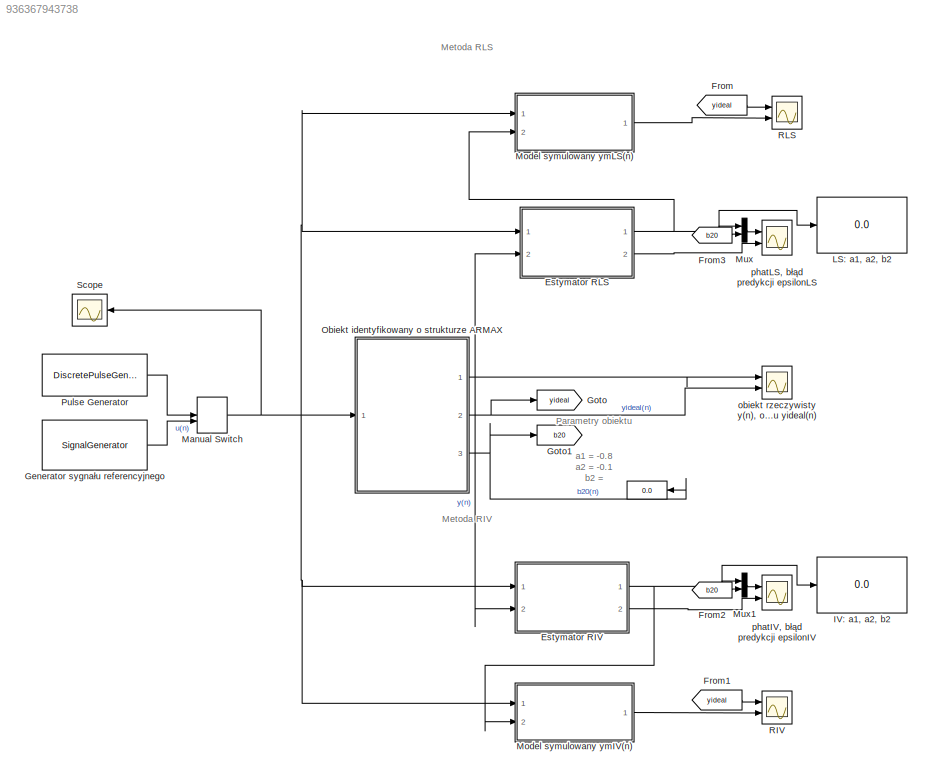
MODEL slx_936367943738
KIND model
CONFIG AbsTol = auto
CONFIG EnableMultiTasking = on
CONFIG FixedStep = Tp
CONFIG MaxStep = auto
CONFIG MinStep = auto
CONFIG RelTol = 1e-3
CONFIG SampleTimeConstraint = Unconstrained
CONFIG Solver = FixedStepDiscrete
CONFIG SolverName = FixedStepDiscrete
CONFIG StartTime = 0.0
CONFIG StopTime = Tend
BLOCK [Display]  
  Decimation = 1
  Ports = [1]
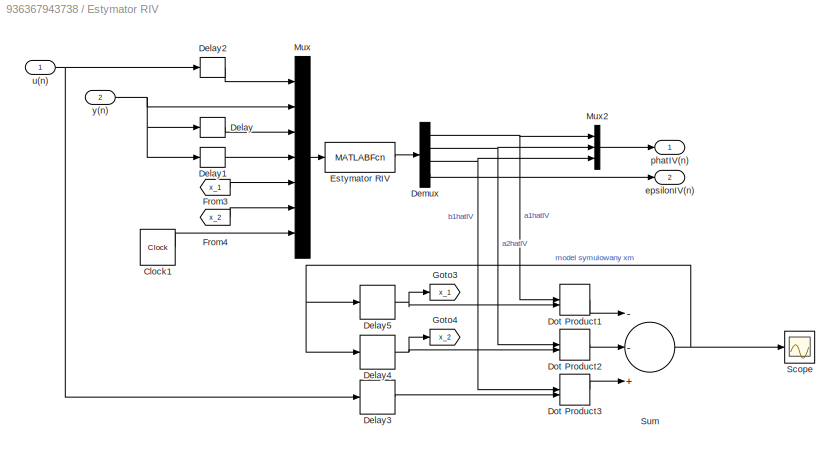
BLOCK [SubSystem] Estymator RIV
  Ports = [2, 2]
  RequestExecContextInheritance = off
BLOCK [Clock] Estymator RIV/Clock1
BLOCK [Delay] Estymator RIV/Delay
  DelayLength = 1
  InputPortMap = u0
  Ports = [1, 1]
BLOCK [Delay] Estymator RIV/Delay1
  InputPortMap = u0
  Ports = [1, 1]
BLOCK [Delay] Estymator RIV/Delay2
  InputPortMap = u0
  Ports = [1, 1]
BLOCK [Delay] Estymator RIV/Delay3
  InputPortMap = u0
  Ports = [1, 1]
BLOCK [Delay] Estymator RIV/Delay4
  InputPortMap = u0
  Ports = [1, 1]
BLOCK [Delay] Estymator RIV/Delay5
  DelayLength = 1
  InputPortMap = u0
  Ports = [1, 1]
BLOCK [Demux] Estymator RIV/Demux
  DisplayOption = bar
  Ports = [1, 4]
BLOCK [DotProduct] Estymator RIV/Dot Product1
  OutDataTypeStr = Inherit: Inherit via internal rule
BLOCK [DotProduct] Estymator RIV/Dot Product2
  OutDataTypeStr = Inherit: Inherit via internal rule
BLOCK [DotProduct] Estymator RIV/Dot Product3
  OutDataTypeStr = Inherit: Inherit via internal rule
BLOCK [MATLABFcn] Estymator RIV/Estymator RIV
  MATLABFcn = ZAD2_1_RIV
  Ports = [1, 1]
BLOCK [From] Estymator RIV/From3
  GotoTag = x_1
BLOCK [From] Estymator RIV/From4
  GotoTag = x_2
BLOCK [Goto] Estymator RIV/Goto3
  GotoTag = x_1
BLOCK [Goto] Estymator RIV/Goto4
  GotoTag = x_2
BLOCK [Mux] Estymator RIV/Mux
  DisplayOption = bar
  Inputs = 7
  Ports = [7, 1]
BLOCK [Mux] Estymator RIV/Mux2
  DisplayOption = bar
  Inputs = 3
  Ports = [3, 1]
BLOCK [Scope] Estymator RIV/Scope
  Floating = off
  NumInputPorts = 1
  Ports = [1]
  ScopeSpecificationString = Simulink.scopes.TimeScopeBlockCfg('CurrentConfiguration', extmgr.ConfigurationSet(extmgr.Configuration('Core','General UI',true),extmgr.Configuration('Core','Source UI',true),extmgr.Configuration('Sources','WiredSimulink',true,'DataLoggingVariableName','ScopeData3'),extmgr.Configuration('Visuals','Time Domain',true,'SerializedDisplays',{struct('MinYLimReal','-5.94228','MaxYLimReal','5.30517','YLab...<+1378ch>
BLOCK [Sum] Estymator RIV/Sum
  InputSameDT = off
  Inputs = --+
  OutDataTypeStr = Inherit: Inherit via internal rule
  Ports = [3, 1]
  SaturateOnIntegerOverflow = off
BLOCK [Outport] Estymator RIV/epsilonIV(n)
  IconDisplay = Port number
  Port = 2
BLOCK [Outport] Estymator RIV/phatIV(n)
  IconDisplay = Port number
BLOCK [Inport] Estymator RIV/u(n)
  IconDisplay = Port number
BLOCK [Inport] Estymator RIV/y(n)
  IconDisplay = Port number
  Port = 2
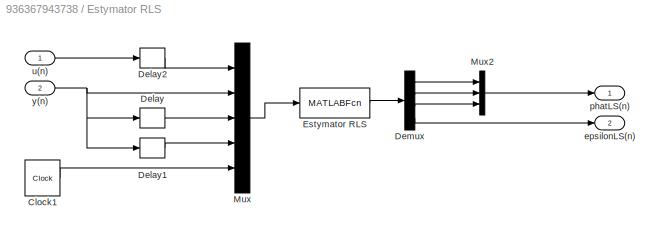
BLOCK [SubSystem] Estymator RLS
  Ports = [2, 2]
  RequestExecContextInheritance = off
BLOCK [Clock] Estymator RLS/Clock1
BLOCK [Delay] Estymator RLS/Delay
  DelayLength = 1
  InputPortMap = u0
  Ports = [1, 1]
BLOCK [Delay] Estymator RLS/Delay1
  InputPortMap = u0
  Ports = [1, 1]
BLOCK [Delay] Estymator RLS/Delay2
  InputPortMap = u0
  Ports = [1, 1]
BLOCK [Demux] Estymator RLS/Demux
  DisplayOption = bar
  Ports = [1, 4]
BLOCK [MATLABFcn] Estymator RLS/Estymator RLS
  MATLABFcn = ZAD2_1_RLS
  Ports = [1, 1]
BLOCK [Mux] Estymator RLS/Mux
  DisplayOption = bar
  Inputs = 5
  Ports = [5, 1]
BLOCK [Mux] Estymator RLS/Mux2
  DisplayOption = bar
  Inputs = 3
  Ports = [3, 1]
BLOCK [Outport] Estymator RLS/epsilonLS(n)
  IconDisplay = Port number
  Port = 2
BLOCK [Outport] Estymator RLS/phatLS(n)
  IconDisplay = Port number
BLOCK [Inport] Estymator RLS/u(n)
  IconDisplay = Port number
BLOCK [Inport] Estymator RLS/y(n)
  IconDisplay = Port number
  Port = 2
BLOCK [From] From
  GotoTag = yideal
BLOCK [From] From1
  GotoTag = yideal
BLOCK [From] From2
  GotoTag = b20
BLOCK [From] From3
  GotoTag = b20
BLOCK [SignalGenerator] Generator sygnału referencyjnego
  Frequency = fu
  Ports = [0, 1]
  WaveForm = square
BLOCK [Goto] Goto
  GotoTag = yideal
BLOCK [Goto] Goto1
  GotoTag = b20
BLOCK [Display] IV: a1, a2, b2
  Decimation = 1
  Ports = [1]
BLOCK [Display] LS: a1, a2, b2
  Decimation = 1
  Ports = [1]
BLOCK [ManualSwitch] Manual Switch
  CurrentSetting = 0
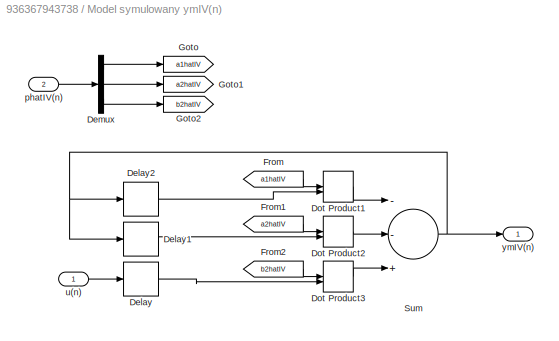
BLOCK [SubSystem] Model symulowany ymIV(n)
  Ports = [2, 1]
  RequestExecContextInheritance = off
BLOCK [Delay] Model symulowany ymIV(n)/Delay
  InputPortMap = u0
  Ports = [1, 1]
BLOCK [Delay] Model symulowany ymIV(n)/Delay1
  InputPortMap = u0
  Ports = [1, 1]
BLOCK [Delay] Model symulowany ymIV(n)/Delay2
  DelayLength = 1
  InputPortMap = u0
  Ports = [1, 1]
BLOCK [Demux] Model symulowany ymIV(n)/Demux
  DisplayOption = bar
  Outputs = 3
  Ports = [1, 3]
BLOCK [DotProduct] Model symulowany ymIV(n)/Dot Product1
  OutDataTypeStr = Inherit: Inherit via internal rule
BLOCK [DotProduct] Model symulowany ymIV(n)/Dot Product2
  OutDataTypeStr = Inherit: Inherit via internal rule
BLOCK [DotProduct] Model symulowany ymIV(n)/Dot Product3
  OutDataTypeStr = Inherit: Inherit via internal rule
BLOCK [From] Model symulowany ymIV(n)/From
  GotoTag = a1hatIV
BLOCK [From] Model symulowany ymIV(n)/From1
  GotoTag = a2hatIV
BLOCK [From] Model symulowany ymIV(n)/From2
  GotoTag = b2hatIV
BLOCK [Goto] Model symulowany ymIV(n)/Goto
  GotoTag = a1hatIV
BLOCK [Goto] Model symulowany ymIV(n)/Goto1
  GotoTag = a2hatIV
BLOCK [Goto] Model symulowany ymIV(n)/Goto2
  GotoTag = b2hatIV
BLOCK [Sum] Model symulowany ymIV(n)/Sum
  InputSameDT = off
  Inputs = --+
  OutDataTypeStr = Inherit: Inherit via internal rule
  Ports = [3, 1]
  SaturateOnIntegerOverflow = off
BLOCK [Inport] Model symulowany ymIV(n)/phatIV(n)
  IconDisplay = Port number
  Port = 2
BLOCK [Inport] Model symulowany ymIV(n)/u(n)
  IconDisplay = Port number
BLOCK [Outport] Model symulowany ymIV(n)/ymIV(n)
  IconDisplay = Port number
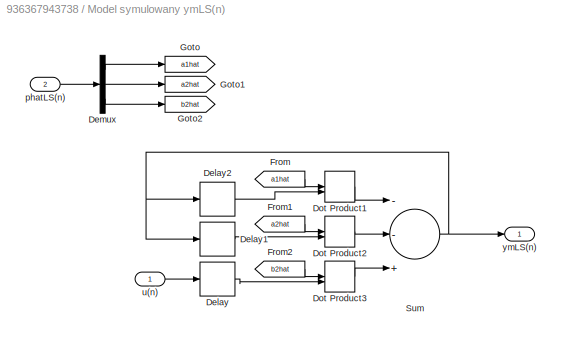
BLOCK [SubSystem] Model symulowany ymLS(n)
  Ports = [2, 1]
  RequestExecContextInheritance = off
BLOCK [Delay] Model symulowany ymLS(n)/Delay
  InputPortMap = u0
  Ports = [1, 1]
BLOCK [Delay] Model symulowany ymLS(n)/Delay1
  InputPortMap = u0
  Ports = [1, 1]
BLOCK [Delay] Model symulowany ymLS(n)/Delay2
  DelayLength = 1
  InputPortMap = u0
  Ports = [1, 1]
BLOCK [Demux] Model symulowany ymLS(n)/Demux
  DisplayOption = bar
  Outputs = 3
  Ports = [1, 3]
BLOCK [DotProduct] Model symulowany ymLS(n)/Dot Product1
  OutDataTypeStr = Inherit: Inherit via internal rule
BLOCK [DotProduct] Model symulowany ymLS(n)/Dot Product2
  OutDataTypeStr = Inherit: Inherit via internal rule
BLOCK [DotProduct] Model symulowany ymLS(n)/Dot Product3
  OutDataTypeStr = Inherit: Inherit via internal rule
BLOCK [From] Model symulowany ymLS(n)/From
  GotoTag = a1hat
BLOCK [From] Model symulowany ymLS(n)/From1
  GotoTag = a2hat
BLOCK [From] Model symulowany ymLS(n)/From2
  GotoTag = b2hat
BLOCK [Goto] Model symulowany ymLS(n)/Goto
  GotoTag = a1hat
BLOCK [Goto] Model symulowany ymLS(n)/Goto1
  GotoTag = a2hat
BLOCK [Goto] Model symulowany ymLS(n)/Goto2
  GotoTag = b2hat
BLOCK [Sum] Model symulowany ymLS(n)/Sum
  InputSameDT = off
  Inputs = --+
  OutDataTypeStr = Inherit: Inherit via internal rule
  Ports = [3, 1]
  SaturateOnIntegerOverflow = off
BLOCK [Inport] Model symulowany ymLS(n)/phatLS(n)
  IconDisplay = Port number
  Port = 2
BLOCK [Inport] Model symulowany ymLS(n)/u(n)
  IconDisplay = Port number
BLOCK [Outport] Model symulowany ymLS(n)/ymLS(n)
  IconDisplay = Port number
BLOCK [Mux] Mux
  DisplayOption = bar
  Inputs = 2
  Ports = [2, 1]
BLOCK [Mux] Mux1
  DisplayOption = bar
  Inputs = 2
  Ports = [2, 1]
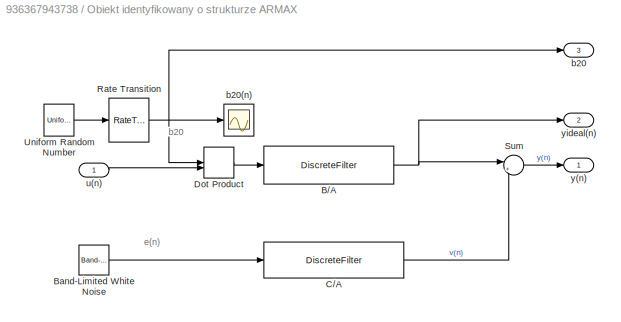
BLOCK [SubSystem] Obiekt identyfikowany o strukturze ARMAX
  Ports = [1, 3]
  RequestExecContextInheritance = off
BLOCK [DiscreteFilter] Obiekt identyfikowany o strukturze ARMAX/B//A
  Denominator = [1 -0.8 -0.1]
  InputPortMap = u0
  Numerator = [0 0 1]
  Ports = [1, 1]
  SampleTime = Tp
BLOCK [Reference] Obiekt identyfikowany o strukturze ARMAX/Band-Limited White Noise  REF=simulink/Sources/Band-Limited
White Noise
  Ports = [0, 1]
  SourceBlock = simulink/Sources/Band-Limited\nWhite Noise
  SourceProductBaseCode = SL
  SourceProductName = Simulink
  SourceType = Band-Limited White Noise.
BLOCK [DiscreteFilter] Obiekt identyfikowany o strukturze ARMAX/C//A
  Denominator = [1 -0.8 -0.1]
  InputPortMap = u0
  Numerator = [1 c10]
  Ports = [1, 1]
  SampleTime = Tp
BLOCK [DotProduct] Obiekt identyfikowany o strukturze ARMAX/Dot Product
  OutDataTypeStr = Inherit: Inherit via internal rule
BLOCK [RateTransition] Obiekt identyfikowany o strukturze ARMAX/Rate Transition
  InitialCondition = 0.5
  OutPortSampleTime = Tp
BLOCK [Sum] Obiekt identyfikowany o strukturze ARMAX/Sum
  IconShape = round
  InputSameDT = off
  Inputs = |++
  OutDataTypeStr = Inherit: Inherit via internal rule
  Ports = [2, 1]
BLOCK [UniformRandomNumber] Obiekt identyfikowany o strukturze ARMAX/Uniform Random Number
  Maximum = 0.5
  Minimum = 0
  SampleTime = Td
BLOCK [Outport] Obiekt identyfikowany o strukturze ARMAX/b20
  IconDisplay = Port number
  Port = 3
BLOCK [Scope] Obiekt identyfikowany o strukturze ARMAX/b20(n)
  Floating = off
  NumInputPorts = 1
  Ports = [1]
  ScopeSpecificationString = Simulink.scopes.TimeScopeBlockCfg('CurrentConfiguration', extmgr.ConfigurationSet(extmgr.Configuration('Core','General UI',true),extmgr.Configuration('Core','Source UI',true),extmgr.Configuration('Sources','WiredSimulink',true,'DataLoggingVariableName','ScopeData8','DataLoggingSaveFormat','StructureWithTime','DataLoggingMaxPoints','50000','DataLoggingLimitDataPoints',true,'DataLoggingDecimation','...<+1745ch>
BLOCK [Inport] Obiekt identyfikowany o strukturze ARMAX/u(n)
  IconDisplay = Port number
BLOCK [Outport] Obiekt identyfikowany o strukturze ARMAX/y(n)
  IconDisplay = Port number
BLOCK [Outport] Obiekt identyfikowany o strukturze ARMAX/yideal(n)
  IconDisplay = Port number
  Port = 2
BLOCK [DiscretePulseGenerator] Pulse Generator
  Period = 5
  Ports = [0, 1]
  PulseType = Time based
  PulseWidth = 50
BLOCK [Scope] RIV
  Floating = off
  NumInputPorts = 2
  Ports = [2]
  ScopeSpecificationString = Simulink.scopes.TimeScopeBlockCfg('CurrentConfiguration', extmgr.ConfigurationSet(extmgr.Configuration('Core','General UI',true),extmgr.Configuration('Core','Source UI',true),extmgr.Configuration('Sources','WiredSimulink',true,'DataLoggingVariableName','ScopeData2'),extmgr.Configuration('Visuals','Time Domain',true,'SerializedDisplays',{struct('MinYLimReal','-5.94228','MaxYLimReal','5.30517','YLab...<+1517ch>
BLOCK [Scope] RLS
  Floating = off
  NumInputPorts = 2
  Ports = [2]
  ScopeSpecificationString = Simulink.scopes.TimeScopeBlockCfg('CurrentConfiguration', extmgr.ConfigurationSet(extmgr.Configuration('Core','General UI',true),extmgr.Configuration('Core','Source UI',true),extmgr.Configuration('Sources','WiredSimulink',true,'DataLoggingVariableName','ScopeData1'),extmgr.Configuration('Visuals','Time Domain',true,'SerializedDisplays',{struct('MinYLimReal','-5.92848','MaxYLimReal','5.27813','YLab...<+1542ch>
BLOCK [Scope] Scope
  Floating = off
  NumInputPorts = 1
  Ports = [1]
  ScopeSpecificationString = Simulink.scopes.TimeScopeBlockCfg('CurrentConfiguration', extmgr.ConfigurationSet(extmgr.Configuration('Core','General UI',true),extmgr.Configuration('Core','Source UI',true),extmgr.Configuration('Sources','WiredSimulink',true,'DataLoggingVariableName','ScopeData1'),extmgr.Configuration('Visuals','Time Domain',true,'SerializedDisplays',{struct('MinYLimReal','-1.25','MaxYLimReal','1.25','YLabelReal...<+1409ch>
BLOCK [Scope] obiekt rzeczywisty y(n), obiekt rzeczywisty bez szumu yideal(n)
  Floating = off
  NumInputPorts = 2
  Ports = [2]
  ScopeSpecificationString = Simulink.scopes.TimeScopeBlockCfg('CurrentConfiguration', extmgr.ConfigurationSet(extmgr.Configuration('Core','General UI',true),extmgr.Configuration('Core','Source UI',true),extmgr.Configuration('Sources','WiredSimulink',true,'DataLoggingVariableName','ScopeData2'),extmgr.Configuration('Visuals','Time Domain',true,'SerializedDisplays',{struct('MinYLimReal','0.85565','MaxYLimReal','4.13606','YLabe...<+1498ch>
BLOCK [Scope] phatIV, błąd predykcji epsilonIV
  Floating = off
  NumInputPorts = 2
  Ports = [2]
  ScopeSpecificationString = Simulink.scopes.TimeScopeBlockCfg('CurrentConfiguration', extmgr.ConfigurationSet(extmgr.Configuration('Core','General UI',true),extmgr.Configuration('Core','Source UI',true),extmgr.Configuration('Sources','WiredSimulink',true,'DataLoggingVariableName','ScopeData1'),extmgr.Configuration('Visuals','Time Domain',true,'SerializedDisplays',{struct('MinYLimReal','-1.19123','MaxYLimReal','0.76789','YLab...<+2341ch>
BLOCK [Scope] phatLS, błąd predykcji epsilonLS
  Floating = off
  NumInputPorts = 2
  Ports = [2]
  ScopeSpecificationString = Simulink.scopes.TimeScopeBlockCfg('CurrentConfiguration', extmgr.ConfigurationSet(extmgr.Configuration('Core','General UI',true),extmgr.Configuration('Core','Source UI',true),extmgr.Configuration('Sources','WiredSimulink',true,'DataLoggingVariableName','ScopeData3'),extmgr.Configuration('Visuals','Time Domain',true,'SerializedDisplays',{struct('MinYLimReal','-1.89775','MaxYLimReal','0.92455','YLab...<+2276ch>
ANNOTATION (root): Metoda RIV
ANNOTATION (root): Metoda RLS
ANNOTATION (root): Parametry obiektu a1 = -0.8 a2 = -0.1 b2 =
ANNOTATION Obiekt identyfikowany o strukturze ARMAX: b20
ANNOTATION Obiekt identyfikowany o strukturze ARMAX: e(n)
LINE Estymator RIV/Clock1:1 -> Estymator RIV/Mux:7
LINE Estymator RIV/Delay1:1 -> Estymator RIV/Mux:4
LINE Estymator RIV/Delay2:1 -> Estymator RIV/Mux:1
LINE Estymator RIV/Delay3:1 -> Estymator RIV/Dot Product3:2
NET Estymator RIV/Delay4:1 -> Estymator RIV/Dot Product2:2, Estymator RIV/Goto4:1
NET Estymator RIV/Delay5:1 -> Estymator RIV/Dot Product1:2, Estymator RIV/Goto3:1
LINE Estymator RIV/Delay:1 -> Estymator RIV/Mux:3
NET Estymator RIV/Demux:1 -> Estymator RIV/Dot Product1:1, Estymator RIV/Mux2:1
NET Estymator RIV/Demux:2 -> Estymator RIV/Dot Product2:1, Estymator RIV/Mux2:2
NET Estymator RIV/Demux:3 -> Estymator RIV/Dot Product3:1, Estymator RIV/Mux2:3
LINE Estymator RIV/Demux:4 -> Estymator RIV/epsilonIV(n):1
LINE Estymator RIV/Dot Product1:1 -> Estymator RIV/Sum:1
LINE Estymator RIV/Dot Product2:1 -> Estymator RIV/Sum:2
LINE Estymator RIV/Dot Product3:1 -> Estymator RIV/Sum:3
LINE Estymator RIV/Estymator RIV:1 -> Estymator RIV/Demux:1
LINE Estymator RIV/From3:1 -> Estymator RIV/Mux:5
LINE Estymator RIV/From4:1 -> Estymator RIV/Mux:6
LINE Estymator RIV/Mux2:1 -> Estymator RIV/phatIV(n):1
LINE Estymator RIV/Mux:1 -> Estymator RIV/Estymator RIV:1
NET Estymator RIV/Sum:1 -> Estymator RIV/Delay4:1, Estymator RIV/Delay5:1, Estymator RIV/Scope:1
NET Estymator RIV/u(n):1 -> Estymator RIV/Delay2:1, Estymator RIV/Delay3:1
NET Estymator RIV/y(n):1 -> Estymator RIV/Delay1:1, Estymator RIV/Delay:1, Estymator RIV/Mux:2
NET Estymator RIV:1 -> IV: a1, a2, b2:1, Model symulowany ymIV(n):2, Mux1:1
LINE Estymator RIV:2 -> phatIV, błąd predykcji epsilonIV:2
LINE Estymator RLS/Clock1:1 -> Estymator RLS/Mux:5
LINE Estymator RLS/Delay1:1 -> Estymator RLS/Mux:4
LINE Estymator RLS/Delay2:1 -> Estymator RLS/Mux:1
LINE Estymator RLS/Delay:1 -> Estymator RLS/Mux:3
LINE Estymator RLS/Demux:1 -> Estymator RLS/Mux2:1
LINE Estymator RLS/Demux:2 -> Estymator RLS/Mux2:2
LINE Estymator RLS/Demux:3 -> Estymator RLS/Mux2:3
LINE Estymator RLS/Demux:4 -> Estymator RLS/epsilonLS(n):1
LINE Estymator RLS/Estymator RLS:1 -> Estymator RLS/Demux:1
LINE Estymator RLS/Mux2:1 -> Estymator RLS/phatLS(n):1
LINE Estymator RLS/Mux:1 -> Estymator RLS/Estymator RLS:1
LINE Estymator RLS/u(n):1 -> Estymator RLS/Delay2:1
NET Estymator RLS/y(n):1 -> Estymator RLS/Delay1:1, Estymator RLS/Delay:1, Estymator RLS/Mux:2
NET Estymator RLS:1 -> LS: a1, a2, b2:1, Model symulowany ymLS(n):2, Mux:1
LINE Estymator RLS:2 -> phatLS, błąd predykcji epsilonLS:2
LINE From1:1 -> RIV:1
LINE From2:1 -> Mux1:2
LINE From3:1 -> Mux:2
LINE From:1 -> RLS:1
LINE Generator sygnału referencyjnego:1 -> Manual Switch:2
NET Manual Switch:1 -> Estymator RIV:1, Estymator RLS:1, Model symulowany ymIV(n):1, Model symulowany ymLS(n):1, Obiekt identyfikowany o strukturze ARMAX:1, Scope:1
LINE Model symulowany ymIV(n)/Delay1:1 -> Model symulowany ymIV(n)/Dot Product2:2
LINE Model symulowany ymIV(n)/Delay2:1 -> Model symulowany ymIV(n)/Dot Product1:2
LINE Model symulowany ymIV(n)/Delay:1 -> Model symulowany ymIV(n)/Dot Product3:2
LINE Model symulowany ymIV(n)/Demux:1 -> Model symulowany ymIV(n)/Goto:1
LINE Model symulowany ymIV(n)/Demux:2 -> Model symulowany ymIV(n)/Goto1:1
LINE Model symulowany ymIV(n)/Demux:3 -> Model symulowany ymIV(n)/Goto2:1
LINE Model symulowany ymIV(n)/Dot Product1:1 -> Model symulowany ymIV(n)/Sum:1
LINE Model symulowany ymIV(n)/Dot Product2:1 -> Model symulowany ymIV(n)/Sum:2
LINE Model symulowany ymIV(n)/Dot Product3:1 -> Model symulowany ymIV(n)/Sum:3
LINE Model symulowany ymIV(n)/From1:1 -> Model symulowany ymIV(n)/Dot Product2:1
LINE Model symulowany ymIV(n)/From2:1 -> Model symulowany ymIV(n)/Dot Product3:1
LINE Model symulowany ymIV(n)/From:1 -> Model symulowany ymIV(n)/Dot Product1:1
NET Model symulowany ymIV(n)/Sum:1 -> Model symulowany ymIV(n)/Delay1:1, Model symulowany ymIV(n)/Delay2:1, Model symulowany ymIV(n)/ymIV(n):1
LINE Model symulowany ymIV(n)/phatIV(n):1 -> Model symulowany ymIV(n)/Demux:1
LINE Model symulowany ymIV(n)/u(n):1 -> Model symulowany ymIV(n)/Delay:1
LINE Model symulowany ymIV(n):1 -> RIV:2
LINE Model symulowany ymLS(n)/Delay1:1 -> Model symulowany ymLS(n)/Dot Product2:2
LINE Model symulowany ymLS(n)/Delay2:1 -> Model symulowany ymLS(n)/Dot Product1:2
LINE Model symulowany ymLS(n)/Delay:1 -> Model symulowany ymLS(n)/Dot Product3:2
LINE Model symulowany ymLS(n)/Demux:1 -> Model symulowany ymLS(n)/Goto:1
LINE Model symulowany ymLS(n)/Demux:2 -> Model symulowany ymLS(n)/Goto1:1
LINE Model symulowany ymLS(n)/Demux:3 -> Model symulowany ymLS(n)/Goto2:1
LINE Model symulowany ymLS(n)/Dot Product1:1 -> Model symulowany ymLS(n)/Sum:1
LINE Model symulowany ymLS(n)/Dot Product2:1 -> Model symulowany ymLS(n)/Sum:2
LINE Model symulowany ymLS(n)/Dot Product3:1 -> Model symulowany ymLS(n)/Sum:3
LINE Model symulowany ymLS(n)/From1:1 -> Model symulowany ymLS(n)/Dot Product2:1
LINE Model symulowany ymLS(n)/From2:1 -> Model symulowany ymLS(n)/Dot Product3:1
LINE Model symulowany ymLS(n)/From:1 -> Model symulowany ymLS(n)/Dot Product1:1
NET Model symulowany ymLS(n)/Sum:1 -> Model symulowany ymLS(n)/Delay1:1, Model symulowany ymLS(n)/Delay2:1, Model symulowany ymLS(n)/ymLS(n):1
LINE Model symulowany ymLS(n)/phatLS(n):1 -> Model symulowany ymLS(n)/Demux:1
LINE Model symulowany ymLS(n)/u(n):1 -> Model symulowany ymLS(n)/Delay:1
LINE Model symulowany ymLS(n):1 -> RLS:2
LINE Mux1:1 -> phatIV, błąd predykcji epsilonIV:1
LINE Mux:1 -> phatLS, błąd predykcji epsilonLS:1
NET Obiekt identyfikowany o strukturze ARMAX/B//A:1 -> Obiekt identyfikowany o strukturze ARMAX/Sum:1, Obiekt identyfikowany o strukturze ARMAX/yideal(n):1
LINE Obiekt identyfikowany o strukturze ARMAX/Band-Limited White Noise:1 -> Obiekt identyfikowany o strukturze ARMAX/C//A:1
LINE Obiekt identyfikowany o strukturze ARMAX/C//A:1 -> Obiekt identyfikowany o strukturze ARMAX/Sum:2
LINE Obiekt identyfikowany o strukturze ARMAX/Dot Product:1 -> Obiekt identyfikowany o strukturze ARMAX/B//A:1
NET Obiekt identyfikowany o strukturze ARMAX/Rate Transition:1 -> Obiekt identyfikowany o strukturze ARMAX/Dot Product:1, Obiekt identyfikowany o strukturze ARMAX/b20(n):1, Obiekt identyfikowany o strukturze ARMAX/b20:1
LINE Obiekt identyfikowany o strukturze ARMAX/Sum:1 -> Obiekt identyfikowany o strukturze ARMAX/y(n):1
LINE Obiekt identyfikowany o strukturze ARMAX/Uniform Random Number:1 -> Obiekt identyfikowany o strukturze ARMAX/Rate Transition:1
LINE Obiekt identyfikowany o strukturze ARMAX/u(n):1 -> Obiekt identyfikowany o strukturze ARMAX/Dot Product:2
NET Obiekt identyfikowany o strukturze ARMAX:1 -> Estymator RIV:2, Estymator RLS:2, obiekt rzeczywisty y(n), obiekt rzeczywisty bez szumu yideal(n):1
NET Obiekt identyfikowany o strukturze ARMAX:2 -> Goto:1, obiekt rzeczywisty y(n), obiekt rzeczywisty bez szumu yideal(n):2
NET Obiekt identyfikowany o strukturze ARMAX:3 ->  :1, Goto1:1
LINE Pulse Generator:1 -> Manual Switch:1
note: NET lines group one-source signal fan-out (src -> all destinations, sorted); 1:1 wires keep LINE
